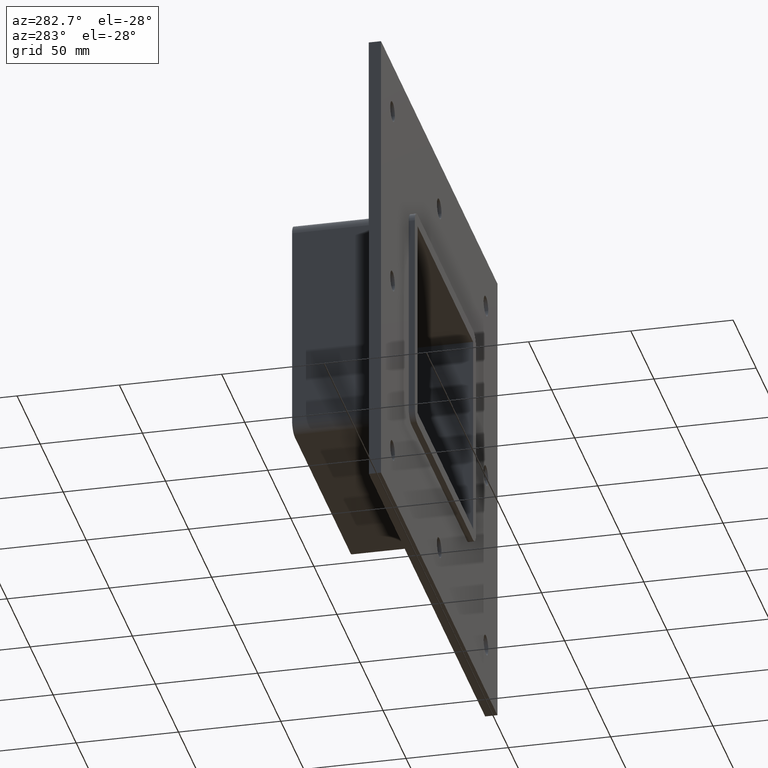
[diagram: clean part render]
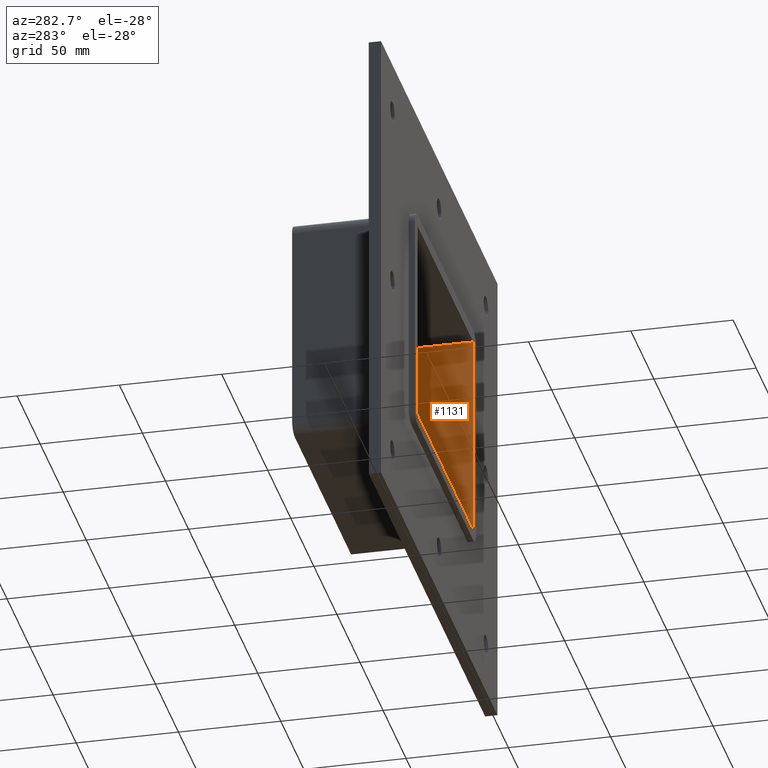
[diagram: same view with one face highlighted and labeled with its STEP entity id]
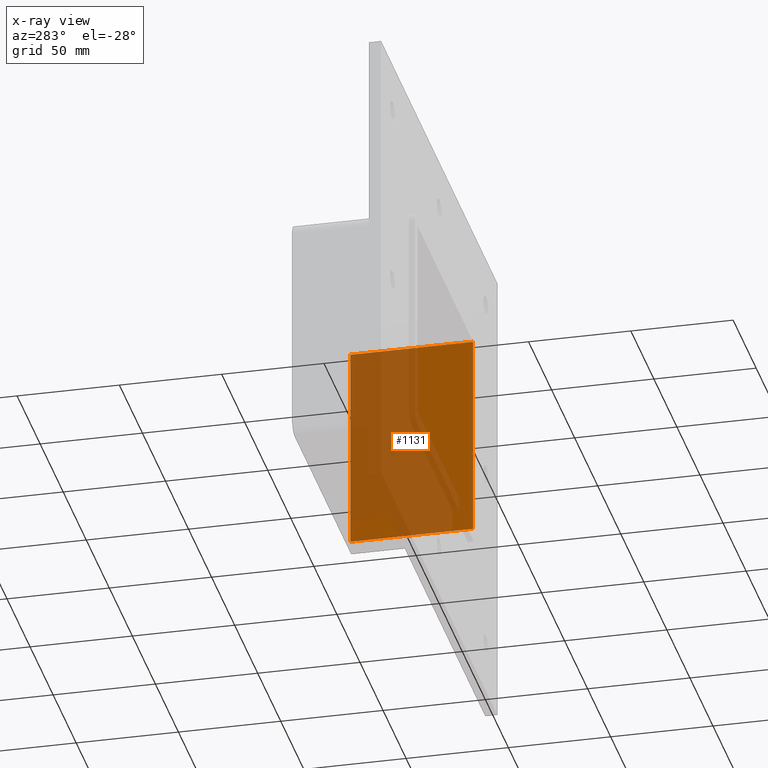
[diagram: x-ray of the same camera — body ghosted, the highlighted face saturated]
A machine part, auxiliary view. The second image highlights one B-rep face of the part: STEP entity #1131.
The next image is the same camera in x-ray: the body ghosted, the highlighted face saturated — about 64% of this face is hidden behind the body in this view.
In plain terms, the highlighted planar face has unit normal (1, 0, 0).
Its self-contained STEP definition (entity closure, byte-faithful):
#984=CARTESIAN_POINT('',(60.25,-3.0,50.500000000000014));
#985=VERTEX_POINT('',#984);
#986=CARTESIAN_POINT('',(60.25,-3.0,-50.5));
#987=VERTEX_POINT('',#986);
#988=CARTESIAN_POINT('',(60.25,-3.0,50.500000000000014));
#989=DIRECTION('',(0.0,0.0,-1.0));
#990=VECTOR('',#989,101.00000000000001);
#991=LINE('',#988,#990);
#992=EDGE_CURVE('',#985,#987,#991,.T.);
#1101=CARTESIAN_POINT('',(60.25,0.0,50.500000000000007));
#1102=DIRECTION('',(1.0,0.0,0.0));
#1103=DIRECTION('',(0.0,0.0,-1.0));
#1104=AXIS2_PLACEMENT_3D('',#1101,#1102,#1103);
#1105=PLANE('',#1104);
#1106=CARTESIAN_POINT('',(60.25,57.0,-50.5));
#1107=VERTEX_POINT('',#1106);
#1108=CARTESIAN_POINT('',(60.25,56.999999999999993,-50.5));
#1109=DIRECTION('',(0.0,-1.0,0.0));
#1110=VECTOR('',#1109,59.999999999999993);
#1111=LINE('',#1108,#1110);
#1112=EDGE_CURVE('',#1107,#987,#1111,.T.);
#1113=ORIENTED_EDGE('',*,*,#1112,.T.);
#1114=ORIENTED_EDGE('',*,*,#992,.F.);
#1115=CARTESIAN_POINT('',(60.25,57.0,50.500000000000014));
#1116=VERTEX_POINT('',#1115);
#1117=CARTESIAN_POINT('',(60.25,-3.0,50.500000000000007));
#1118=DIRECTION('',(0.0,1.0,0.0));
#1119=VECTOR('',#1118,60.0);
#1120=LINE('',#1117,#1119);
#1121=EDGE_CURVE('',#985,#1116,#1120,.T.);
#1122=ORIENTED_EDGE('',*,*,#1121,.T.);
#1123=CARTESIAN_POINT('',(60.25,57.0,-50.5));
#1124=DIRECTION('',(0.0,0.0,1.0));
#1125=VECTOR('',#1124,101.00000000000001);
#1126=LINE('',#1123,#1125);
#1127=EDGE_CURVE('',#1107,#1116,#1126,.T.);
#1128=ORIENTED_EDGE('',*,*,#1127,.F.);
#1129=EDGE_LOOP('',(#1113,#1114,#1122,#1128));
#1130=FACE_OUTER_BOUND('',#1129,.T.);
#1131=ADVANCED_FACE('',(#1130),#1105,.F.);